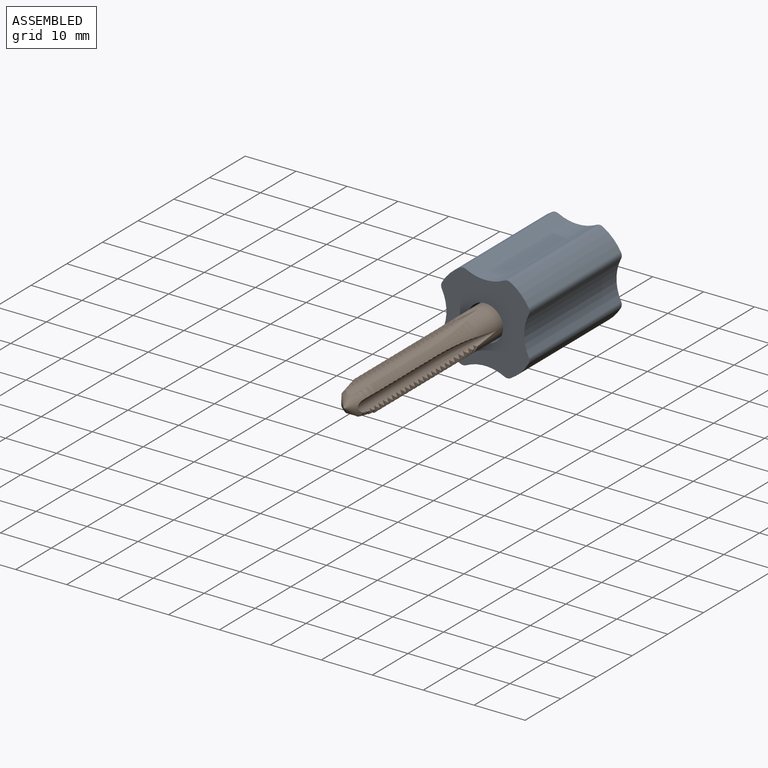
[diagram: assembled view]
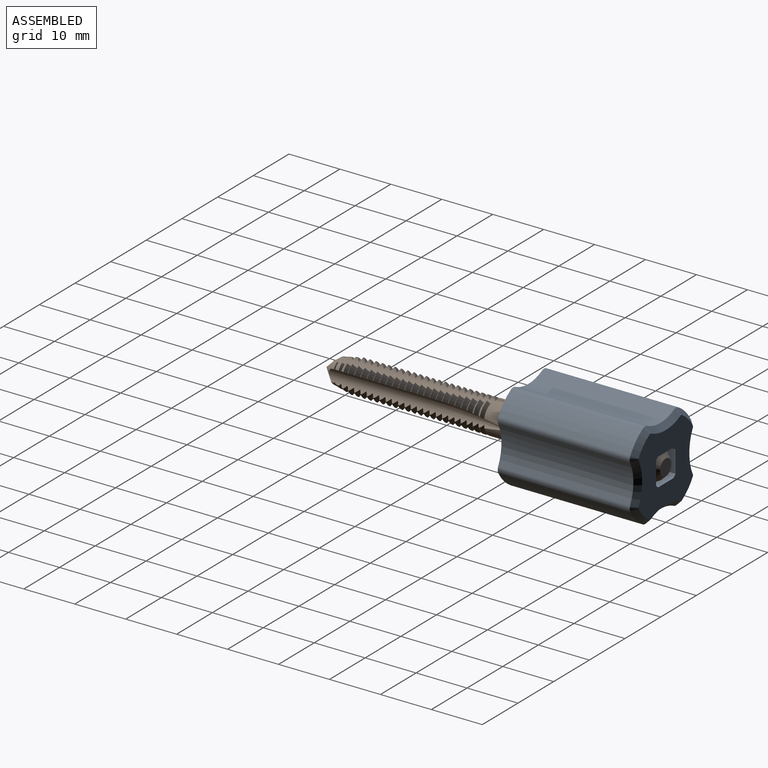
[diagram: assembled view, second angle]
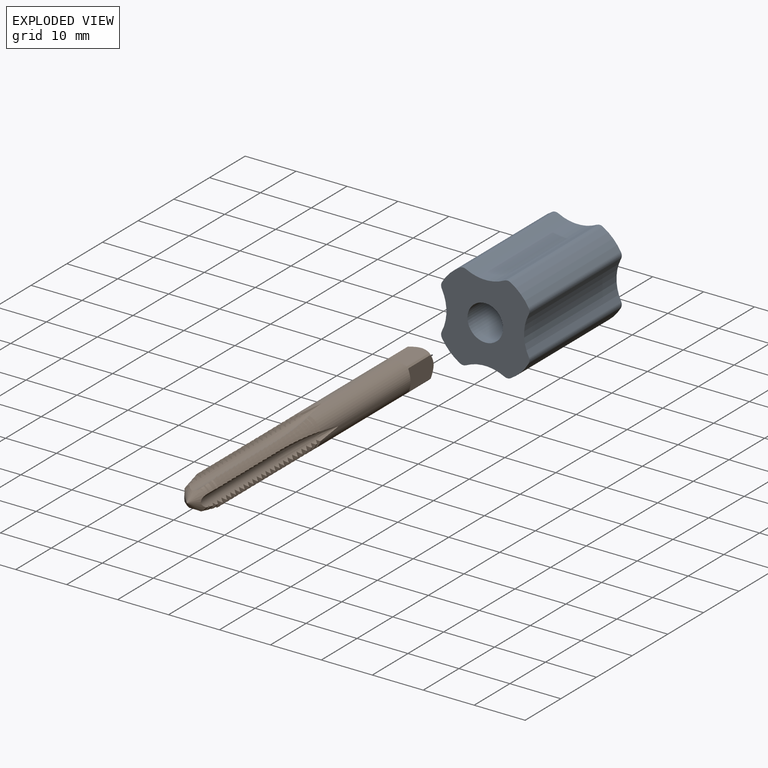
[diagram: exploded view]
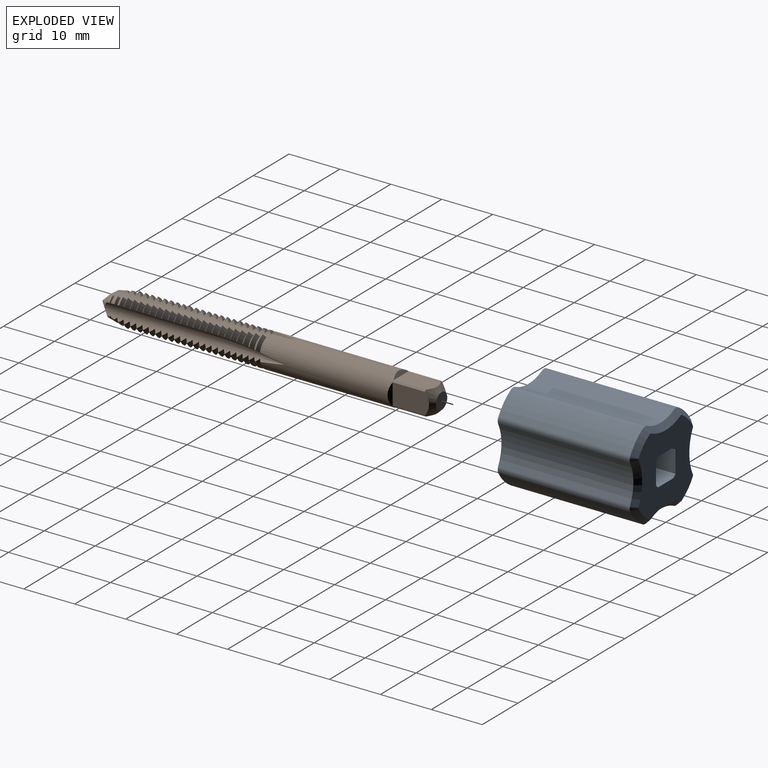
[diagram: exploded view, second angle]
ASSEMBLY  parts=2 mates=2
PART A: 43 faces, bbox 17.3x17.3x26.9 mm
  f0: cylinder r=9.84mm len=25.91mm, axis (0,0,-1), area 130mm2, adj f4,f19,f26,f34
  f1: cylinder r=9.84mm len=25.91mm, axis (0,0,-1), area 130mm2, adj f4,f20,f21,f42
  f2: cylinder r=9.84mm len=25.91mm, axis (0,0,-1), area 130mm2, adj f4,f22,f23,f35
  f3: plane 15.3x15.3mm, normal (0,0,1), area 163.3mm2, adj f5,f8,f10,f12,f14,f27,f28,f29
  f4: plane 17.33x17.33mm, normal (0,0,-1), area 213.5mm2, adj f0,f1,f2,f5,f6,f15,f16,f17
  f5: cylinder r=3.49mm len=26.92mm, axis (0,0,-1), area 447.5mm2, adj f3,f4,f7,f8,f9,f10,f11,f12
  f6: cylinder r=9.84mm len=25.91mm, axis (0,0,-1), area 130mm2, adj f4,f24,f25,f27
  f7: plane 4.36x0.76mm, normal (0,0,-1), area 2.3mm2, adj f5,f8
  f8: plane 7.62x4.36mm, normal (-1,0,0), area 33.2mm2, adj f3,f5,f7
  f9: plane 4.36x0.76mm, normal (0,0,-1), area 2.3mm2, adj f5,f10
  f10: plane 7.62x4.36mm, normal (0,1,0), area 33.2mm2, adj f3,f5,f9
  f11: plane 4.36x0.76mm, normal (0,0,-1), area 2.3mm2, adj f5,f12
  f12: plane 7.62x4.36mm, normal (1,0,0), area 33.2mm2, adj f3,f5,f11
  f13: plane 4.36x0.76mm, normal (0,0,-1), area 2.3mm2, adj f5,f14
  f14: plane 7.62x4.36mm, normal (0,-1,0), area 33.2mm2, adj f3,f5,f13
  f15: cylinder r=8.26mm len=25.91mm, axis (0,0,1), area 202.2mm2, adj f4,f25,f26,f30
  f16: cylinder r=8.26mm len=25.91mm, axis (0,0,1), area 202.2mm2, adj f4,f23,f24,f31
  f17: cylinder r=8.26mm len=25.91mm, axis (0,0,1), area 202.2mm2, adj f4,f21,f22,f39
  f18: cylinder r=8.26mm len=25.91mm, axis (0,0,1), area 202.2mm2, adj f4,f19,f20,f38
  f19: cylinder r=1.27mm len=25.91mm, axis (0,0,1), area 33mm2, adj f0,f4,f18,f36
  f20: cylinder r=1.27mm len=25.91mm, axis (0,0,-1), area 33mm2, adj f1,f4,f18,f40
  f21: cylinder r=1.27mm len=25.91mm, axis (0,0,1), area 33mm2, adj f1,f4,f17,f41
  f22: cylinder r=1.27mm len=25.91mm, axis (0,0,-1), area 33mm2, adj f2,f4,f17,f37
  f23: cylinder r=1.27mm len=25.91mm, axis (0,0,-1), area 33mm2, adj f2,f4,f16,f33
  f24: cylinder r=1.27mm len=25.91mm, axis (0,0,1), area 33mm2, adj f4,f6,f16,f29
  f25: cylinder r=1.27mm len=25.91mm, axis (0,0,-1), area 33mm2, adj f4,f6,f15,f28
  f26: cylinder r=1.27mm len=25.91mm, axis (0,0,1), area 33mm2, adj f0,f4,f15,f32
  f27: cone r=8.83mm half-angle=45deg, axis (0,0,-1), area 6.8mm2, adj f3,f6,f28,f29
  f28: cone r=0.25mm half-angle=45deg, axis (0,0,-1), area 1.1mm2, adj f3,f25,f27,f30
  f29: cone r=0.25mm half-angle=45deg, axis (0,0,-1), area 1.1mm2, adj f3,f24,f27,f31
  f30: cone r=8.26mm half-angle=45deg, axis (0,0,1), area 11.9mm2, adj f3,f15,f28,f32
  f31: cone r=8.26mm half-angle=45deg, axis (0,0,1), area 11.9mm2, adj f3,f16,f29,f33
  f32: cone r=0.25mm half-angle=45deg, axis (0,0,-1), area 1.1mm2, adj f3,f26,f30,f34
  f33: cone r=0.25mm half-angle=45deg, axis (0,0,-1), area 1.1mm2, adj f3,f23,f31,f35
  f34: cone r=8.83mm half-angle=45deg, axis (0,0,-1), area 6.8mm2, adj f0,f3,f32,f36
  f35: cone r=8.83mm half-angle=45deg, axis (0,0,-1), area 6.8mm2, adj f2,f3,f33,f37
  f36: cone r=0.25mm half-angle=45deg, axis (0,0,-1), area 1.1mm2, adj f3,f19,f34,f38
  f37: cone r=0.25mm half-angle=45deg, axis (0,0,-1), area 1.1mm2, adj f3,f22,f35,f39
  f38: cone r=9.27mm half-angle=45deg, axis (0,0,1), area 11.9mm2, adj f3,f18,f36,f40
  f39: cone r=9.27mm half-angle=45deg, axis (0,0,1), area 11.9mm2, adj f3,f17,f37,f41
  f40: cone r=0.25mm half-angle=45deg, axis (0,0,-1), area 1.1mm2, adj f3,f20,f38,f42
  f41: cone r=0.25mm half-angle=45deg, axis (0,0,-1), area 1.1mm2, adj f3,f21,f39,f42
  f42: cone r=8.83mm half-angle=45deg, axis (0,0,-1), area 6.8mm2, adj f1,f3,f40,f41
PART B: 248 faces, bbox 66.7x6.5x6.5 mm
  f0: cone r=2.53mm half-angle=55deg, axis (-1,0,0), area 2.3mm2, adj f1,f171,f242,f246
  f1: cone r=3.17mm half-angle=55deg, axis (1,0,0), area 2.2mm2, adj f0,f2,f242,f246
  f2: cylinder r=3.17mm len=2.05mm, axis (1,0,0), area 0.8mm2, adj f1,f3,f242,f246
  f3: cone r=2.43mm half-angle=55deg, axis (-1,0,0), area 2.4mm2, adj f2,f4,f242,f246
  f4: cone r=3.17mm half-angle=55deg, axis (1,0,0), area 2.3mm2, adj f3,f5,f242,f246
  f5: cylinder r=3.17mm len=1.86mm, axis (1,0,0), area 0.4mm2, adj f4,f6,f242,f246
  f6: cone r=2.36mm half-angle=55deg, axis (-1,0,0), area 2.3mm2, adj f5,f7,f242,f246
  f7: cone r=3.17mm half-angle=55deg, axis (1,0,0), area 2.2mm2, adj f6,f8,f242,f246
  f8: cylinder r=3.17mm len=1.69mm, axis (1,0,0), area 0.1mm2, adj f7,f9,f242,f246
  f9: cone r=2.31mm half-angle=55deg, axis (-1,0,0), area 2.2mm2, adj f8,f10,f242,f246
  f10: cone r=3.17mm half-angle=55deg, axis (1,0,0), area 2.1mm2, adj f9,f11,f242,f246
  f11: cylinder r=3.17mm len=1.55mm, axis (1,0,0), area 0mm2, adj f10,f12,f242,f246
  f12: cone r=2.29mm half-angle=55deg, axis (-1,0,0), area 2mm2, adj f11,f13,f242,f246
  f13: cone r=3.17mm half-angle=55deg, axis (1,0,0), area 1.9mm2, adj f12,f14,f242,f246
  f14: cone r=2.29mm half-angle=55deg, axis (-1,0,0), area 1.9mm2, adj f13,f15,f242,f246
  f15: cone r=3.17mm half-angle=55deg, axis (1,0,0), area 1.8mm2, adj f14,f16,f242,f246
  f16: cone r=2.29mm half-angle=55deg, axis (-1,0,0), area 1.7mm2, adj f15,f17,f242,f246
  f17: cone r=3.17mm half-angle=55deg, axis (1,0,0), area 1.7mm2, adj f16,f18,f242,f246
  f18: cone r=2.29mm half-angle=55deg, axis (-1,0,0), area 1.7mm2, adj f17,f19,f242,f246
  f19: cone r=3.17mm half-angle=55deg, axis (1,0,0), area 1.6mm2, adj f18,f20,f242,f246
  f20: cone r=2.29mm half-angle=55deg, axis (-1,0,0), area 1.6mm2, adj f19,f21,f242,f246
  f21: cone r=3.17mm half-angle=55deg, axis (1,0,0), area 1.6mm2, adj f20,f22,f242,f243,f246,f247
  f22: cone r=2.29mm half-angle=55deg, axis (-1,0,0), area 1.6mm2, adj f21,f23,f243,f247
  f23: cone r=3.17mm half-angle=55deg, axis (1,0,0), area 1.6mm2, adj f22,f24,f243,f247
  f24: cone r=2.29mm half-angle=55deg, axis (-1,0,0), area 1.6mm2, adj f23,f25,f243,f247
  f25: cone r=3.17mm half-angle=55deg, axis (1,0,0), area 1.6mm2, adj f24,f26,f243,f247
  f26: cone r=2.29mm half-angle=55deg, axis (-1,0,0), area 1.6mm2, adj f25,f27,f243,f247
  f27: cone r=3.17mm half-angle=55deg, axis (1,0,0), area 1.6mm2, adj f26,f28,f243,f247
  f28: cone r=2.29mm half-angle=55deg, axis (-1,0,0), area 1.6mm2, adj f27,f29,f243,f247
  f29: cone r=3.17mm half-angle=55deg, axis (1,0,0), area 1.6mm2, adj f28,f30,f243,f247
  f30: cone r=2.29mm half-angle=55deg, axis (-1,0,0), area 1.6mm2, adj f29,f31,f243,f247
  f31: cone r=3.17mm half-angle=55deg, axis (1,0,0), area 1.6mm2, adj f30,f32,f243,f247
  f32: cone r=2.29mm half-angle=55deg, axis (-1,0,0), area 1.6mm2, adj f31,f33,f243,f247
  f33: cone r=3.17mm half-angle=55deg, axis (1,0,0), area 1.6mm2, adj f32,f34,f243,f247
  f34: cone r=2.29mm half-angle=55deg, axis (-1,0,0), area 1.6mm2, adj f33,f35,f243,f247
  f35: cone r=3.17mm half-angle=55deg, axis (1,0,0), area 1.6mm2, adj f34,f36,f243,f247
  f36: cone r=2.29mm half-angle=55deg, axis (-1,0,0), area 1.6mm2, adj f35,f37,f243,f247
  f37: cone r=3.17mm half-angle=55deg, axis (1,0,0), area 1.6mm2, adj f36,f38,f243,f247
  f38: cone r=2.29mm half-angle=55deg, axis (-1,0,0), area 1.6mm2, adj f37,f39,f243,f247
  f39: cone r=3.17mm half-angle=55deg, axis (1,0,0), area 1.6mm2, adj f38,f40,f243,f247
  f40: cone r=2.29mm half-angle=55deg, axis (-1,0,0), area 1.6mm2, adj f39,f41,f243,f247
  f41: cone r=3.17mm half-angle=55deg, axis (1,0,0), area 1.6mm2, adj f40,f42,f243,f247
  f42: cone r=2.29mm half-angle=55deg, axis (-1,0,0), area 1.6mm2, adj f41,f43,f243,f247
  f43: cone r=3.17mm half-angle=55deg, axis (1,0,0), area 1.6mm2, adj f42,f44,f243,f247
  f44: cone r=2.29mm half-angle=55deg, axis (-1,0,0), area 1.6mm2, adj f43,f45,f243,f247
  f45: cone r=3.17mm half-angle=55deg, axis (1,0,0), area 1.6mm2, adj f44,f46,f243,f247
  f46: cone r=2.29mm half-angle=55deg, axis (-1,0,0), area 1.6mm2, adj f45,f47,f243,f247
  f47: cone r=3.17mm half-angle=55deg, axis (1,0,0), area 1.6mm2, adj f46,f48,f243,f247
  f48: cone r=2.29mm half-angle=55deg, axis (-1,0,0), area 1.6mm2, adj f47,f49,f243,f247
  f49: cone r=2.95mm half-angle=55deg, axis (1,0,0), area 1.2mm2, adj f48,f50,f243,f247
  f50: cone r=2.87mm half-angle=11.8deg, axis (-1,0,0), area 0.6mm2, adj f49,f51,f243,f247
  f51: cone r=2.29mm half-angle=55deg, axis (-1,0,0), area 1mm2, adj f50,f52,f243,f247
  f52: cone r=2.73mm half-angle=55deg, axis (1,0,0), area 0.8mm2, adj f51,f53,f243,f247
  f53: cone r=2.57mm half-angle=11.8deg, axis (-1,0,0), area 1.1mm2, adj f52,f54,f243,f247
  f54: cone r=2.29mm half-angle=55deg, axis (-1,0,0), area 0.5mm2, adj f53,f55,f243,f247
  f55: cone r=2.5mm half-angle=55deg, axis (1,0,0), area 0.4mm2, adj f54,f56,f243,f247
  f56: cone r=2.38mm half-angle=11.8deg, axis (-1,0,0), area 0.8mm2, adj f55,f172,f243,f247
  f57: cone r=2.53mm half-angle=55deg, axis (-1,0,0), area 2.3mm2, adj f59,f171,f242,f244
  f58: cone r=2.53mm half-angle=55deg, axis (-1,0,0), area 2.3mm2, adj f60,f171,f240,f244
  f59: cone r=3.17mm half-angle=55deg, axis (1,0,0), area 2.2mm2, adj f57,f61,f242,f244
  f60: cone r=3.17mm half-angle=55deg, axis (1,0,0), area 2.2mm2, adj f58,f62,f240,f244
  f61: cylinder r=3.17mm len=2.05mm, axis (1,0,0), area 0.8mm2, adj f59,f63,f242,f244
  f62: cylinder r=3.17mm len=2.05mm, axis (1,0,0), area 0.8mm2, adj f60,f64,f240,f244
  f63: cone r=2.43mm half-angle=55deg, axis (-1,0,0), area 2.4mm2, adj f61,f65,f242,f244
  f64: cone r=2.43mm half-angle=55deg, axis (-1,0,0), area 2.4mm2, adj f62,f66,f240,f244
  f65: cone r=3.17mm half-angle=55deg, axis (1,0,0), area 2.3mm2, adj f63,f67,f242,f244
  f66: cone r=3.17mm half-angle=55deg, axis (1,0,0), area 2.3mm2, adj f64,f68,f240,f244
  f67: cylinder r=3.17mm len=1.86mm, axis (1,0,0), area 0.4mm2, adj f65,f69,f242,f244
  f68: cylinder r=3.17mm len=1.86mm, axis (1,0,0), area 0.4mm2, adj f66,f70,f240,f244
  f69: cone r=2.36mm half-angle=55deg, axis (-1,0,0), area 2.3mm2, adj f67,f71,f242,f244
  f70: cone r=2.36mm half-angle=55deg, axis (-1,0,0), area 2.3mm2, adj f68,f72,f240,f244
  f71: cone r=3.17mm half-angle=55deg, axis (1,0,0), area 2.2mm2, adj f69,f73,f242,f244
  f72: cone r=3.17mm half-angle=55deg, axis (1,0,0), area 2.2mm2, adj f70,f74,f240,f244
  f73: cylinder r=3.17mm len=1.69mm, axis (1,0,0), area 0.1mm2, adj f71,f75,f242,f244
  f74: cylinder r=3.17mm len=1.69mm, axis (1,0,0), area 0.1mm2, adj f72,f76,f240,f244
  f75: cone r=2.31mm half-angle=55deg, axis (-1,0,0), area 2.2mm2, adj f73,f77,f242,f244
  f76: cone r=2.31mm half-angle=55deg, axis (-1,0,0), area 2.2mm2, adj f74,f78,f240,f244
  f77: cone r=3.17mm half-angle=55deg, axis (1,0,0), area 2.1mm2, adj f75,f79,f242,f244
  f78: cone r=3.17mm half-angle=55deg, axis (1,0,0), area 2.1mm2, adj f76,f80,f240,f244
  f79: cylinder r=3.17mm len=1.55mm, axis (1,0,0), area 0mm2, adj f77,f81,f242,f244
  f80: cylinder r=3.17mm len=1.55mm, axis (1,0,0), area 0mm2, adj f78,f82,f240,f244
  f81: cone r=2.29mm half-angle=55deg, axis (-1,0,0), area 2mm2, adj f79,f83,f242,f244
  f82: cone r=2.29mm half-angle=55deg, axis (-1,0,0), area 2mm2, adj f80,f84,f240,f244
  f83: cone r=3.17mm half-angle=55deg, axis (1,0,0), area 1.9mm2, adj f81,f85,f242,f244
  f84: cone r=3.17mm half-angle=55deg, axis (1,0,0), area 1.9mm2, adj f82,f86,f240,f244
  f85: cone r=2.29mm half-angle=55deg, axis (-1,0,0), area 1.9mm2, adj f83,f87,f242,f244
  f86: cone r=2.29mm half-angle=55deg, axis (-1,0,0), area 1.9mm2, adj f84,f88,f240,f244
  f87: cone r=3.17mm half-angle=55deg, axis (1,0,0), area 1.8mm2, adj f85,f89,f242,f244
  f88: cone r=3.17mm half-angle=55deg, axis (1,0,0), area 1.8mm2, adj f86,f90,f240,f244
  f89: cone r=2.29mm half-angle=55deg, axis (-1,0,0), area 1.7mm2, adj f87,f91,f242,f244
  f90: cone r=2.29mm half-angle=55deg, axis (-1,0,0), area 1.7mm2, adj f88,f92,f240,f244
  f91: cone r=3.17mm half-angle=55deg, axis (1,0,0), area 1.7mm2, adj f89,f93,f242,f244
  f92: cone r=3.17mm half-angle=55deg, axis (1,0,0), area 1.7mm2, adj f90,f94,f240,f244
  f93: cone r=2.29mm half-angle=55deg, axis (-1,0,0), area 1.7mm2, adj f91,f95,f242,f244
  f94: cone r=2.29mm half-angle=55deg, axis (-1,0,0), area 1.7mm2, adj f92,f96,f240,f244
  f95: cone r=3.17mm half-angle=55deg, axis (1,0,0), area 1.6mm2, adj f93,f97,f242,f244
  f96: cone r=3.17mm half-angle=55deg, axis (1,0,0), area 1.6mm2, adj f94,f98,f240,f244
  f97: cone r=2.29mm half-angle=55deg, axis (-1,0,0), area 1.6mm2, adj f95,f99,f242,f244
  f98: cone r=2.29mm half-angle=55deg, axis (-1,0,0), area 1.6mm2, adj f96,f100,f240,f244
  f99: cone r=3.17mm half-angle=55deg, axis (1,0,0), area 1.6mm2, adj f97,f101,f242,f243,f244,f245
  f100: cone r=3.17mm half-angle=55deg, axis (1,0,0), area 1.6mm2, adj f98,f102,f240,f241,f244,f245
  f101: cone r=2.29mm half-angle=55deg, axis (-1,0,0), area 1.6mm2, adj f99,f103,f243,f245
  f102: cone r=2.29mm half-angle=55deg, axis (-1,0,0), area 1.6mm2, adj f100,f104,f241,f245
  f103: cone r=3.17mm half-angle=55deg, axis (1,0,0), area 1.6mm2, adj f101,f105,f243,f245
  f104: cone r=3.17mm half-angle=55deg, axis (1,0,0), area 1.6mm2, adj f102,f106,f241,f245
  f105: cone r=2.29mm half-angle=55deg, axis (-1,0,0), area 1.6mm2, adj f103,f107,f243,f245
  f106: cone r=2.29mm half-angle=55deg, axis (-1,0,0), area 1.6mm2, adj f104,f108,f241,f245
  f107: cone r=3.17mm half-angle=55deg, axis (1,0,0), area 1.6mm2, adj f105,f109,f243,f245
  f108: cone r=3.17mm half-angle=55deg, axis (1,0,0), area 1.6mm2, adj f106,f110,f241,f245
  f109: cone r=2.29mm half-angle=55deg, axis (-1,0,0), area 1.6mm2, adj f107,f111,f243,f245
  f110: cone r=2.29mm half-angle=55deg, axis (-1,0,0), area 1.6mm2, adj f108,f112,f241,f245
  f111: cone r=3.17mm half-angle=55deg, axis (1,0,0), area 1.6mm2, adj f109,f113,f243,f245
  f112: cone r=3.17mm half-angle=55deg, axis (1,0,0), area 1.6mm2, adj f110,f114,f241,f245
  f113: cone r=2.29mm half-angle=55deg, axis (-1,0,0), area 1.6mm2, adj f111,f115,f243,f245
  f114: cone r=2.29mm half-angle=55deg, axis (-1,0,0), area 1.6mm2, adj f112,f116,f241,f245
  f115: cone r=3.17mm half-angle=55deg, axis (1,0,0), area 1.6mm2, adj f113,f117,f243,f245
  f116: cone r=3.17mm half-angle=55deg, axis (1,0,0), area 1.6mm2, adj f114,f118,f241,f245
  f117: cone r=2.29mm half-angle=55deg, axis (-1,0,0), area 1.6mm2, adj f115,f119,f243,f245
  f118: cone r=2.29mm half-angle=55deg, axis (-1,0,0), area 1.6mm2, adj f116,f120,f241,f245
  f119: cone r=3.17mm half-angle=55deg, axis (1,0,0), area 1.6mm2, adj f117,f121,f243,f245
  f120: cone r=3.17mm half-angle=55deg, axis (1,0,0), area 1.6mm2, adj f118,f122,f241,f245
  f121: cone r=2.29mm half-angle=55deg, axis (-1,0,0), area 1.6mm2, adj f119,f123,f243,f245
  f122: cone r=2.29mm half-angle=55deg, axis (-1,0,0), area 1.6mm2, adj f120,f124,f241,f245
  f123: cone r=3.17mm half-angle=55deg, axis (1,0,0), area 1.6mm2, adj f121,f125,f243,f245
  f124: cone r=3.17mm half-angle=55deg, axis (1,0,0), area 1.6mm2, adj f122,f126,f241,f245
  f125: cone r=2.29mm half-angle=55deg, axis (-1,0,0), area 1.6mm2, adj f123,f127,f243,f245
  f126: cone r=2.29mm half-angle=55deg, axis (-1,0,0), area 1.6mm2, adj f124,f128,f241,f245
  f127: cone r=3.17mm half-angle=55deg, axis (1,0,0), area 1.6mm2, adj f125,f129,f243,f245
  f128: cone r=3.17mm half-angle=55deg, axis (1,0,0), area 1.6mm2, adj f126,f130,f241,f245
  f129: cone r=2.29mm half-angle=55deg, axis (-1,0,0), area 1.6mm2, adj f127,f131,f243,f245
  f130: cone r=2.29mm half-angle=55deg, axis (-1,0,0), area 1.6mm2, adj f128,f132,f241,f245
  f131: cone r=3.17mm half-angle=55deg, axis (1,0,0), area 1.6mm2, adj f129,f133,f243,f245
  f132: cone r=3.17mm half-angle=55deg, axis (1,0,0), area 1.6mm2, adj f130,f134,f241,f245
  f133: cone r=2.29mm half-angle=55deg, axis (-1,0,0), area 1.6mm2, adj f131,f135,f243,f245
  f134: cone r=2.29mm half-angle=55deg, axis (-1,0,0), area 1.6mm2, adj f132,f136,f241,f245
  f135: cone r=3.17mm half-angle=55deg, axis (1,0,0), area 1.6mm2, adj f133,f137,f243,f245
  f136: cone r=3.17mm half-angle=55deg, axis (1,0,0), area 1.6mm2, adj f134,f138,f241,f245
  f137: cone r=2.29mm half-angle=55deg, axis (-1,0,0), area 1.6mm2, adj f135,f139,f243,f245
  f138: cone r=2.29mm half-angle=55deg, axis (-1,0,0), area 1.6mm2, adj f136,f140,f241,f245
  f139: cone r=3.17mm half-angle=55deg, axis (1,0,0), area 1.6mm2, adj f137,f141,f243,f245
  f140: cone r=3.17mm half-angle=55deg, axis (1,0,0), area 1.6mm2, adj f138,f142,f241,f245
  f141: cone r=2.29mm half-angle=55deg, axis (-1,0,0), area 1.6mm2, adj f139,f143,f243,f245
  f142: cone r=2.29mm half-angle=55deg, axis (-1,0,0), area 1.6mm2, adj f140,f144,f241,f245
  f143: cone r=3.17mm half-angle=55deg, axis (1,0,0), area 1.6mm2, adj f141,f145,f243,f245
  f144: cone r=3.17mm half-angle=55deg, axis (1,0,0), area 1.6mm2, adj f142,f146,f241,f245
  f145: cone r=2.29mm half-angle=55deg, axis (-1,0,0), area 1.6mm2, adj f143,f147,f243,f245
  f146: cone r=2.29mm half-angle=55deg, axis (-1,0,0), area 1.6mm2, adj f144,f148,f241,f245
  f147: cone r=3.17mm half-angle=55deg, axis (1,0,0), area 1.6mm2, adj f145,f149,f243,f245
  f148: cone r=3.17mm half-angle=55deg, axis (1,0,0), area 1.6mm2, adj f146,f150,f241,f245
  f149: cone r=2.29mm half-angle=55deg, axis (-1,0,0), area 1.6mm2, adj f147,f151,f243,f245
  f150: cone r=2.29mm half-angle=55deg, axis (-1,0,0), area 1.6mm2, adj f148,f152,f241,f245
  f151: cone r=3.17mm half-angle=55deg, axis (1,0,0), area 1.6mm2, adj f149,f153,f243,f245
  f152: cone r=3.17mm half-angle=55deg, axis (1,0,0), area 1.6mm2, adj f150,f154,f241,f245
  f153: cone r=2.29mm half-angle=55deg, axis (-1,0,0), area 1.6mm2, adj f151,f155,f243,f245
  f154: cone r=2.29mm half-angle=55deg, axis (-1,0,0), area 1.6mm2, adj f152,f156,f241,f245
  f155: cone r=2.95mm half-angle=55deg, axis (1,0,0), area 1.2mm2, adj f153,f157,f243,f245
  f156: cone r=2.95mm half-angle=55deg, axis (1,0,0), area 1.2mm2, adj f154,f158,f241,f245
  f157: cone r=2.87mm half-angle=11.8deg, axis (-1,0,0), area 0.6mm2, adj f155,f159,f243,f245
  f158: cone r=2.87mm half-angle=11.8deg, axis (-1,0,0), area 0.6mm2, adj f156,f160,f241,f245
  f159: cone r=2.29mm half-angle=55deg, axis (-1,0,0), area 1mm2, adj f157,f161,f243,f245
  f160: cone r=2.29mm half-angle=55deg, axis (-1,0,0), area 1mm2, adj f158,f162,f241,f245
  f161: cone r=2.73mm half-angle=55deg, axis (1,0,0), area 0.8mm2, adj f159,f163,f243,f245
  f162: cone r=2.73mm half-angle=55deg, axis (1,0,0), area 0.8mm2, adj f160,f164,f241,f245
  f163: cone r=2.57mm half-angle=11.8deg, axis (-1,0,0), area 1.1mm2, adj f161,f165,f243,f245
  f164: cone r=2.57mm half-angle=11.8deg, axis (-1,0,0), area 1.1mm2, adj f162,f166,f241,f245
  f165: cone r=2.29mm half-angle=55deg, axis (-1,0,0), area 0.5mm2, adj f163,f167,f243,f245
  f166: cone r=2.29mm half-angle=55deg, axis (-1,0,0), area 0.5mm2, adj f164,f168,f241,f245
  f167: cone r=2.5mm half-angle=55deg, axis (1,0,0), area 0.4mm2, adj f165,f169,f243,f245
  f168: cone r=2.5mm half-angle=55deg, axis (1,0,0), area 0.4mm2, adj f166,f170,f241,f245
  f169: cone r=2.38mm half-angle=11.8deg, axis (-1,0,0), area 0.8mm2, adj f167,f172,f243,f245
  f170: cone r=2.38mm half-angle=11.8deg, axis (-1,0,0), area 0.8mm2, adj f168,f172,f241,f245
  f171: cylinder r=3.17mm len=31.85mm, axis (1,0,0), area 495.3mm2, adj f0,f57,f58,f173,f230,f231,f232,f233
  f172: cone r=0mm half-angle=45deg, axis (-1,0,0), area 19mm2, adj f56,f169,f170,f229,f241,f243,f245,f247
  f173: cone r=2.53mm half-angle=55deg, axis (-1,0,0), area 2.3mm2, adj f171,f174,f240,f246
  f174: cone r=3.17mm half-angle=55deg, axis (1,0,0), area 2.2mm2, adj f173,f175,f240,f246
  f175: cylinder r=3.17mm len=2.05mm, axis (1,0,0), area 0.8mm2, adj f174,f176,f240,f246
  f176: cone r=2.43mm half-angle=55deg, axis (-1,0,0), area 2.4mm2, adj f175,f177,f240,f246
  f177: cone r=3.17mm half-angle=55deg, axis (1,0,0), area 2.3mm2, adj f176,f178,f240,f246
  f178: cylinder r=3.17mm len=1.86mm, axis (1,0,0), area 0.4mm2, adj f177,f179,f240,f246
  f179: cone r=2.36mm half-angle=55deg, axis (-1,0,0), area 2.3mm2, adj f178,f180,f240,f246
  f180: cone r=3.17mm half-angle=55deg, axis (1,0,0), area 2.2mm2, adj f179,f181,f240,f246
  f181: cylinder r=3.17mm len=1.69mm, axis (1,0,0), area 0.1mm2, adj f180,f182,f240,f246
  f182: cone r=2.31mm half-angle=55deg, axis (-1,0,0), area 2.2mm2, adj f181,f183,f240,f246
  f183: cone r=3.17mm half-angle=55deg, axis (1,0,0), area 2.1mm2, adj f182,f184,f240,f246
  f184: cylinder r=3.17mm len=1.55mm, axis (1,0,0), area 0mm2, adj f183,f185,f240,f246
  f185: cone r=2.29mm half-angle=55deg, axis (-1,0,0), area 2mm2, adj f184,f186,f240,f246
  f186: cone r=3.17mm half-angle=55deg, axis (1,0,0), area 1.9mm2, adj f185,f187,f240,f246
  f187: cone r=2.29mm half-angle=55deg, axis (-1,0,0), area 1.9mm2, adj f186,f188,f240,f246
  f188: cone r=3.17mm half-angle=55deg, axis (1,0,0), area 1.8mm2, adj f187,f189,f240,f246
  f189: cone r=2.29mm half-angle=55deg, axis (-1,0,0), area 1.7mm2, adj f188,f190,f240,f246
  f190: cone r=3.17mm half-angle=55deg, axis (1,0,0), area 1.7mm2, adj f189,f191,f240,f246
  f191: cone r=2.29mm half-angle=55deg, axis (-1,0,0), area 1.7mm2, adj f190,f192,f240,f246
  f192: cone r=3.17mm half-angle=55deg, axis (1,0,0), area 1.6mm2, adj f191,f193,f240,f246
  f193: cone r=2.29mm half-angle=55deg, axis (-1,0,0), area 1.6mm2, adj f192,f194,f240,f246
  f194: cone r=3.17mm half-angle=55deg, axis (1,0,0), area 1.6mm2, adj f193,f195,f240,f241,f246,f247
  f195: cone r=2.29mm half-angle=55deg, axis (-1,0,0), area 1.6mm2, adj f194,f196,f241,f247
  f196: cone r=3.17mm half-angle=55deg, axis (1,0,0), area 1.6mm2, adj f195,f197,f241,f247
  f197: cone r=2.29mm half-angle=55deg, axis (-1,0,0), area 1.6mm2, adj f196,f198,f241,f247
  f198: cone r=3.17mm half-angle=55deg, axis (1,0,0), area 1.6mm2, adj f197,f199,f241,f247
  f199: cone r=2.29mm half-angle=55deg, axis (-1,0,0), area 1.6mm2, adj f198,f200,f241,f247
  f200: cone r=3.17mm half-angle=55deg, axis (1,0,0), area 1.6mm2, adj f199,f201,f241,f247
  f201: cone r=2.29mm half-angle=55deg, axis (-1,0,0), area 1.6mm2, adj f200,f202,f241,f247
  f202: cone r=3.17mm half-angle=55deg, axis (1,0,0), area 1.6mm2, adj f201,f203,f241,f247
  f203: cone r=2.29mm half-angle=55deg, axis (-1,0,0), area 1.6mm2, adj f202,f204,f241,f247
  f204: cone r=3.17mm half-angle=55deg, axis (1,0,0), area 1.6mm2, adj f203,f205,f241,f247
  f205: cone r=2.29mm half-angle=55deg, axis (-1,0,0), area 1.6mm2, adj f204,f206,f241,f247
  f206: cone r=3.17mm half-angle=55deg, axis (1,0,0), area 1.6mm2, adj f205,f207,f241,f247
  f207: cone r=2.29mm half-angle=55deg, axis (-1,0,0), area 1.6mm2, adj f206,f208,f241,f247
  f208: cone r=3.17mm half-angle=55deg, axis (1,0,0), area 1.6mm2, adj f207,f209,f241,f247
  f209: cone r=2.29mm half-angle=55deg, axis (-1,0,0), area 1.6mm2, adj f208,f210,f241,f247
  f210: cone r=3.17mm half-angle=55deg, axis (1,0,0), area 1.6mm2, adj f209,f211,f241,f247
  f211: cone r=2.29mm half-angle=55deg, axis (-1,0,0), area 1.6mm2, adj f210,f212,f241,f247
  f212: cone r=3.17mm half-angle=55deg, axis (1,0,0), area 1.6mm2, adj f211,f213,f241,f247
  f213: cone r=2.29mm half-angle=55deg, axis (-1,0,0), area 1.6mm2, adj f212,f214,f241,f247
  f214: cone r=3.17mm half-angle=55deg, axis (1,0,0), area 1.6mm2, adj f213,f215,f241,f247
  f215: cone r=2.29mm half-angle=55deg, axis (-1,0,0), area 1.6mm2, adj f214,f216,f241,f247
  f216: cone r=3.17mm half-angle=55deg, axis (1,0,0), area 1.6mm2, adj f215,f217,f241,f247
  f217: cone r=2.29mm half-angle=55deg, axis (-1,0,0), area 1.6mm2, adj f216,f218,f241,f247
  f218: cone r=3.17mm half-angle=55deg, axis (1,0,0), area 1.6mm2, adj f217,f219,f241,f247
  f219: cone r=2.29mm half-angle=55deg, axis (-1,0,0), area 1.6mm2, adj f218,f220,f241,f247
  f220: cone r=3.17mm half-angle=55deg, axis (1,0,0), area 1.6mm2, adj f219,f221,f241,f247
  f221: cone r=2.29mm half-angle=55deg, axis (-1,0,0), area 1.6mm2, adj f220,f222,f241,f247
  f222: cone r=2.95mm half-angle=55deg, axis (1,0,0), area 1.2mm2, adj f221,f223,f241,f247
  f223: cone r=2.87mm half-angle=11.8deg, axis (-1,0,0), area 0.6mm2, adj f222,f224,f241,f247
  f224: cone r=2.29mm half-angle=55deg, axis (-1,0,0), area 1mm2, adj f223,f225,f241,f247
  f225: cone r=2.73mm half-angle=55deg, axis (1,0,0), area 0.8mm2, adj f224,f226,f241,f247
  f226: cone r=2.57mm half-angle=11.8deg, axis (-1,0,0), area 1.1mm2, adj f225,f227,f241,f247
  f227: cone r=2.29mm half-angle=55deg, axis (-1,0,0), area 0.5mm2, adj f226,f228,f241,f247
  f228: cone r=2.5mm half-angle=55deg, axis (1,0,0), area 0.4mm2, adj f227,f229,f241,f247
  f229: cone r=2.38mm half-angle=11.8deg, axis (-1,0,0), area 0.8mm2, adj f172,f228,f241,f247
  f230: plane 7.13x4.21mm, normal (0,0,-1), area 28.8mm2, adj f171,f234,f238
  f231: plane 7.13x4.21mm, normal (0,0,1), area 28.8mm2, adj f171,f235,f238
  f232: plane 7.13x4.21mm, normal (0,1,0), area 28.8mm2, adj f171,f236,f238
  f233: plane 7.13x4.21mm, normal (0,-1,0), area 28.8mm2, adj f171,f237,f238
  f234: plane 4.2x0.79mm, normal (-0.87,0,-0.5), area 2.6mm2, adj f171,f230
  f235: plane 4.28x0.87mm, normal (-0.87,0,0.5), area 2.6mm2, adj f171,f231
  f236: plane 4.2x0.79mm, normal (-0.87,0.5,0), area 2.6mm2, adj f171,f232
  f237: plane 4.2x0.79mm, normal (-0.87,-0.5,0), area 2.6mm2, adj f171,f233
  f238: cone r=1.59mm half-angle=44.6deg, axis (1,0,0), area 20.8mm2, adj f171,f230,f231,f232,f233,f239
  f239: plane 3.18x3.18mm, normal (-1,0,0), area 7.9mm2, adj f238
  f240: revolved ~15.32x3.14mm, area 35.6mm2, adj f58,f60,f62,f64,f66,f68,f70,f72
  f241: cylinder r=1.59mm len=21.09mm, axis (1,0,0), area 66.1mm2, adj f100,f102,f104,f106,f108,f110,f112,f114
  f242: revolved ~15.32x3.14mm, area 35.6mm2, adj f0,f1,f2,f3,f4,f5,f6,f7
  f243: cylinder r=1.59mm len=21.09mm, axis (1,0,0), area 66.1mm2, adj f21,f22,f23,f24,f25,f26,f27,f28
  f244: revolved ~15.32x3.14mm, area 35.6mm2, adj f57,f58,f59,f60,f61,f62,f63,f64
  f245: cylinder r=1.59mm len=21.09mm, axis (1,0,0), area 66.1mm2, adj f99,f100,f101,f102,f103,f104,f105,f106
  f246: revolved ~15.32x3.14mm, area 35.6mm2, adj f0,f1,f2,f3,f4,f5,f6,f7
  f247: cylinder r=1.59mm len=21.09mm, axis (1,0,0), area 66.1mm2, adj f21,f22,f23,f24,f25,f26,f27,f28
PLACE A rot(axis=(0,0.71,0.71),180deg) t=(0,-26.92,0)mm
PLACE B rot(axis=(0.58,-0.58,-0.58),120deg) t=(0,-66.62,0)mm
MATE slider B.f2 <-> A.f0  axis (0,-1,0) through (0,-17.54,0)mm
MATE planar B.f238 <-> A.f13  axis (0,-1,0) through (0,-7.62,0)mm
